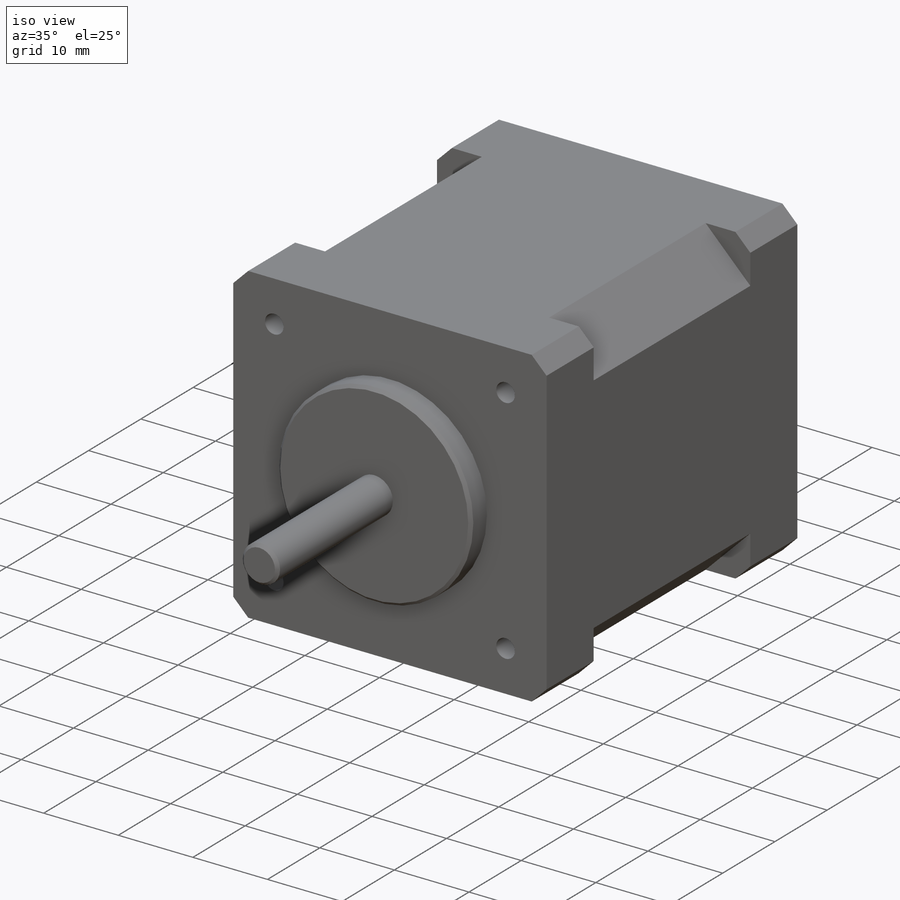
[diagram: iso view]
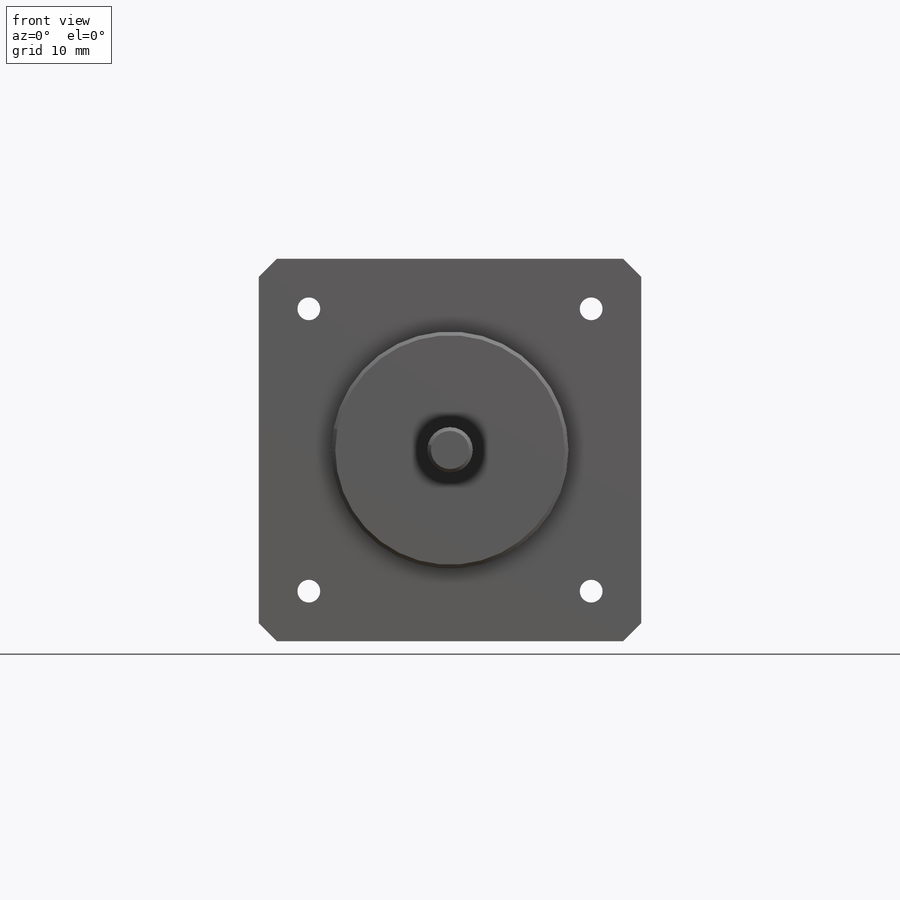
[diagram: front view]
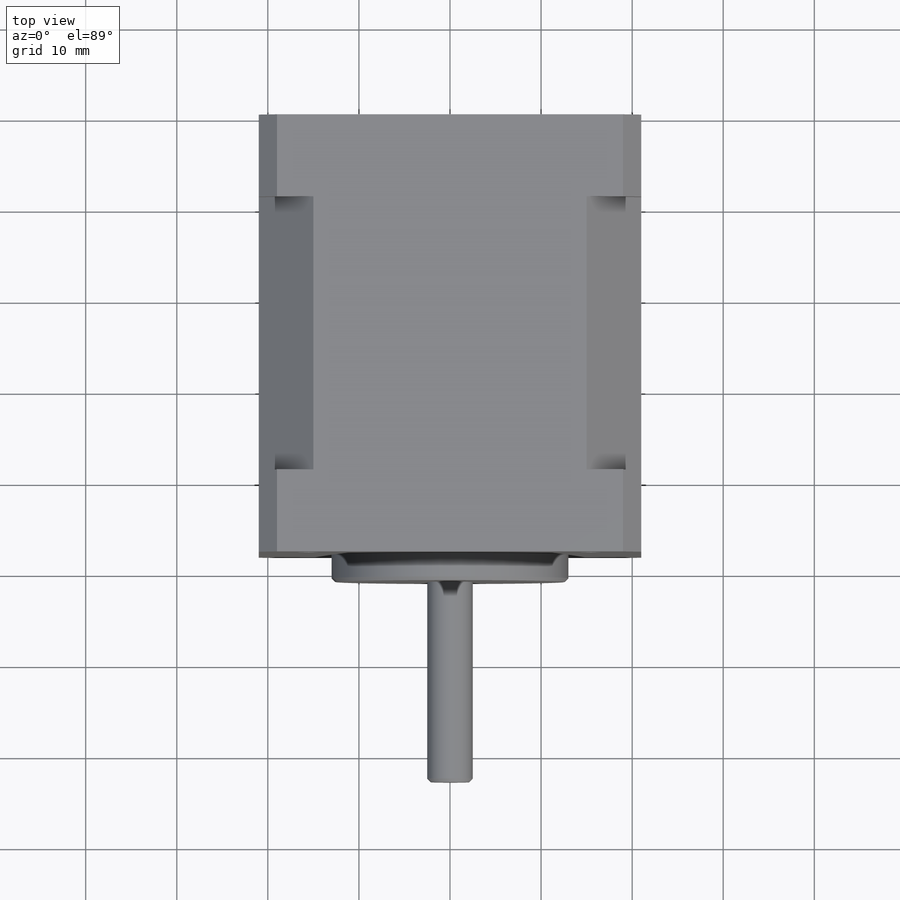
[diagram: top view]
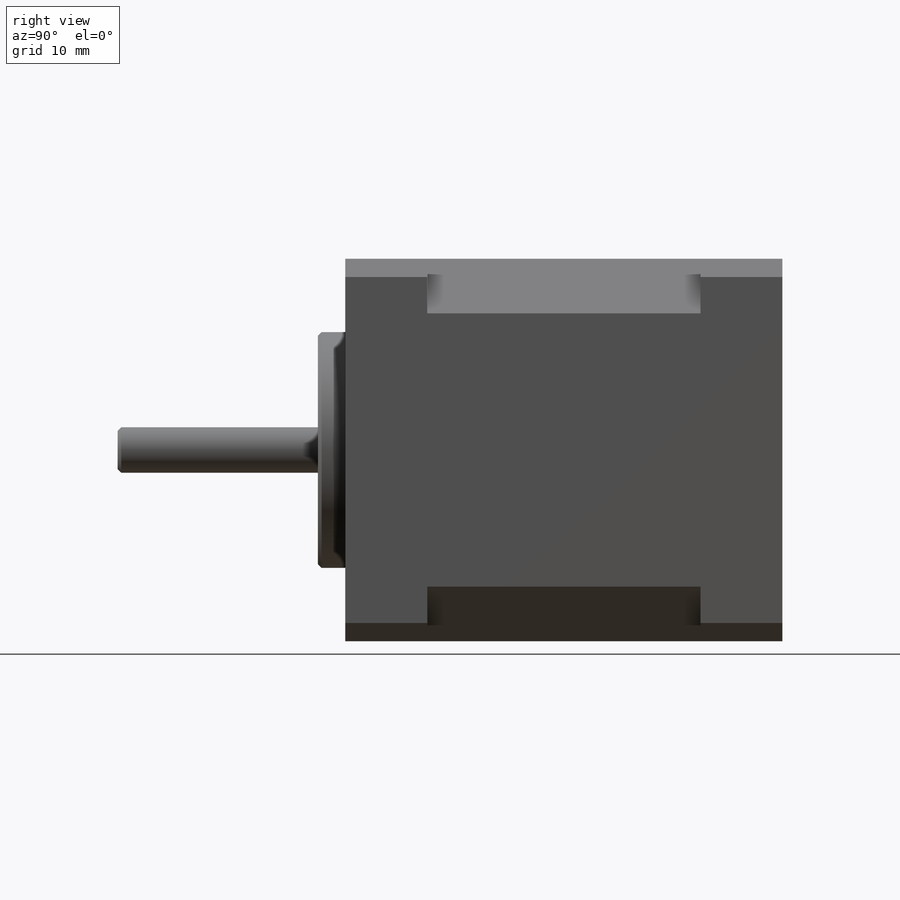
[diagram: right view]
SOLIDWORKS PART (.sldprt)
format: sldprt  version: not decoded by parser v0  size: 305,152 bytes
history: native  units: mm
features: sketch x6, plane x3, extrude x3, chamfer x3, material x1, hole x1, cut_extrude x1 (+8 scaffold rows collapsed)
feature tree (26):
  scaffold x8  (default folders/planes/origin — collapsed)
  material  "Material <not specified>"
  plane  "Plan de face"
  plane  "Plan de dessus"
  plane  "Plan de droite"
  sketch  "Esquisse1"  dims[D1=42.0mm D2=42.0mm D3=21.0mm D4=21.0mm]
  extrude  "Boss.-Extru.1"  Depth=48mm
  chamfer  "Chanfrein1"  Distance=2mm Angle=45deg
  sketch  "Esquisse3"  dims[D1=26.0mm]
  extrude  "Boss.-Extru.2"  Depth=3mm
  hole  "Trou pour taraudage pour trou taraudé M3x0.51"  Diameter=2.5mm Depth=48mm
  sketch  "Esquisse5"  dims[D1=5.5mm D2=5.5mm D3=5.5mm D4=5.5mm D5=5.5mm D6=5.5mm D7=5.5mm D8=5.5mm]
  sketch  "Esquisse6"  dims[hole-wizard template sketch: 60 standard entries collapsed; hole parameters kept: c18.Profondeur du perçage jusqu'au prochain=48.0mm]
  sketch  "Esquisse7"  dims[D1=5.0mm]
  extrude  "Boss.-Extru.3"  Depth=22mm
  chamfer  "Chanfrein2"  Distance=0.4mm Angle=45deg
  chamfer  "Chanfrein3"  Distance=0.4mm Angle=45deg
  sketch  "Esquisse9"  dims[D1=6.0mm D2=~4.873601mm]
  cut_extrude  "Enlèv. mat.-Extru.1"  Depth=30mm
decode coverage: 14 of 14 modeling features carry decoded parameters
note: ~ marks probable driven/reference dimensions
note: suppression state not decoded; provenance and decode notes live in map.json
